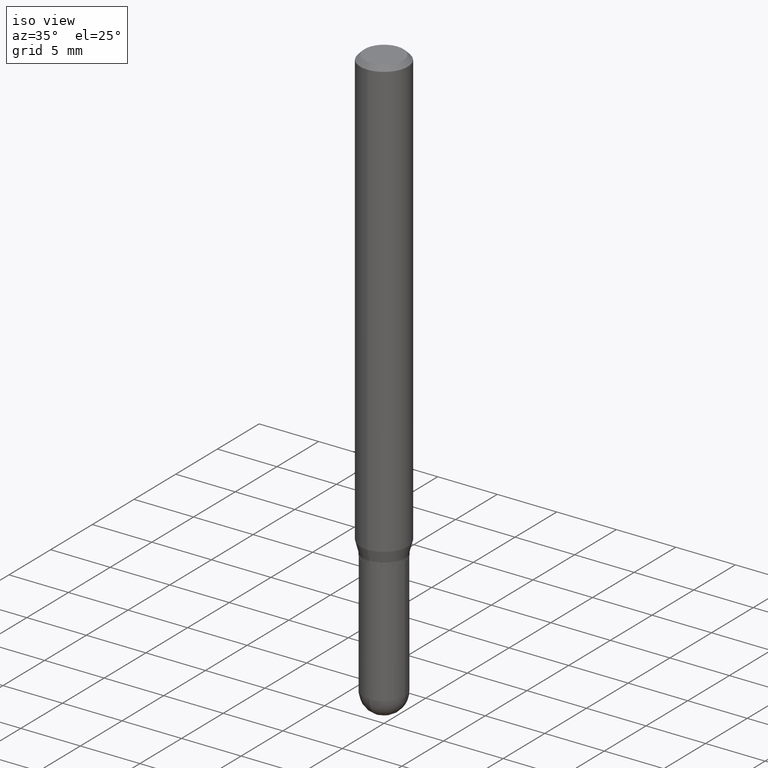
[diagram: clean part render]
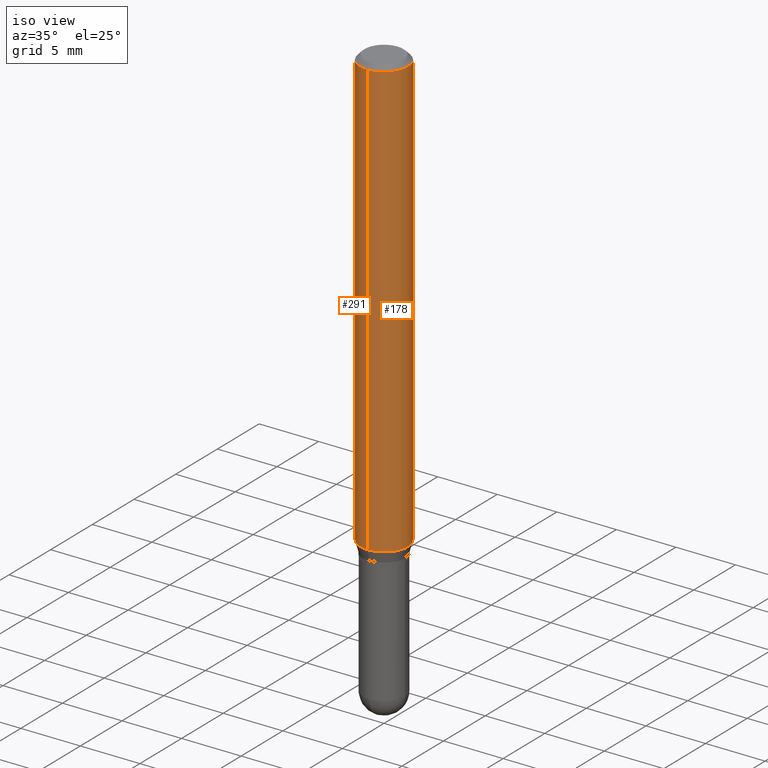
[diagram: same view with one multi-face feature highlighted, each face labeled with its STEP entity id]
A machine part, iso view. The highlighted faces form ONE feature: a constant-radius fillet chain: 2 tangent blend faces with common blend radius 2.0002 mm. The faces share edges in the B-rep.
Their STEP definitions:
[1] entity #291 (Cylinder):
#5 = ORIENTED_EDGE ( 'NONE', *, *, #56, .T. ) ;
#21 = CYLINDRICAL_SURFACE ( 'NONE', #35, 0.07874999999999997280 ) ;
#35 = AXIS2_PLACEMENT_3D ( 'NONE', #143, #461, #370 ) ;
#40 = VERTEX_POINT ( 'NONE', #343 ) ;
#55 = AXIS2_PLACEMENT_3D ( 'NONE', #185, #100, #418 ) ;
#56 = EDGE_CURVE ( 'NONE', #393, #40, #335, .T. ) ;
#73 = CARTESIAN_POINT ( 'NONE',  ( -5.499083108677932471E-16, -0.07874999999999997280, 2.749046200580822473E-16 ) ) ;
#80 = CARTESIAN_POINT ( 'NONE',  ( -5.499083108677930499E-16, -0.07875000000000004219, -0.01499999999999965423 ) ) ;
#97 = EDGE_CURVE ( 'NONE', #327, #408, #309, .T. ) ;
#100 = DIRECTION ( 'NONE',  ( -2.445908048954081787E-29, 3.490852318197870426E-15, 1.000000000000000000 ) ) ;
#107 = LINE ( 'NONE', #331, #497 ) ;
#121 = EDGE_CURVE ( 'NONE', #393, #327, #107, .T. ) ;
#135 = DIRECTION ( 'NONE',  ( -2.445908048954081787E-29, 3.490852318197870426E-15, 1.000000000000000000 ) ) ;
#143 = CARTESIAN_POINT ( 'NONE',  ( 0.000000000000000000, 0.000000000000000000, 0.000000000000000000 ) ) ;
#152 = LINE ( 'NONE', #73, #361 ) ;
#154 = ORIENTED_EDGE ( 'NONE', *, *, #451, .T. ) ;
#156 = AXIS2_PLACEMENT_3D ( 'NONE', #427, #135, #334 ) ;
#185 = CARTESIAN_POINT ( 'NONE',  ( 3.668862073431105567E-31, -5.236278477296780938E-17, -0.01499999999999993006 ) ) ;
#202 = CARTESIAN_POINT ( 'NONE',  ( 5.595524044111142018E-16, 0.07874999999999494904, -1.449339299545445936 ) ) ;
#279 = ORIENTED_EDGE ( 'NONE', *, *, #121, .F. ) ;
#291 = ADVANCED_FACE ( 'NONE', ( #372 ), #21, .T. ) ;
#309 = CIRCLE ( 'NONE', #55, 0.07875000000000000056 ) ;
#327 = VERTEX_POINT ( 'NONE', #464 ) ;
#331 = CARTESIAN_POINT ( 'NONE',  ( 5.595524044110786045E-16, 0.07874999999999997280, -2.749046200580822473E-16 ) ) ;
#334 = DIRECTION ( 'NONE',  ( -6.982962677686265922E-15, -1.000000000000000000, 3.469013325287954477E-15 ) ) ;
#335 = CIRCLE ( 'NONE', #156, 0.07874999999999997280 ) ;
#343 = CARTESIAN_POINT ( 'NONE',  ( -5.499083108677578469E-16, -0.07875000000000501044, -1.449339299545445270 ) ) ;
#361 = VECTOR ( 'NONE', #402, 39.37007874015748143 ) ;
#370 = DIRECTION ( 'NONE',  ( -6.982962677686265922E-15, -1.000000000000000000, 3.490852318197870821E-15 ) ) ;
#372 = FACE_OUTER_BOUND ( 'NONE', #441, .T. ) ;
#393 = VERTEX_POINT ( 'NONE', #202 ) ;
#402 = DIRECTION ( 'NONE',  ( -2.445908048954081507E-29, 3.490852318197870426E-15, 1.000000000000000000 ) ) ;
#408 = VERTEX_POINT ( 'NONE', #80 ) ;
#418 = DIRECTION ( 'NONE',  ( -6.982962677686264344E-15, -1.000000000000000000, 3.496114991891765576E-15 ) ) ;
#427 = CARTESIAN_POINT ( 'NONE',  ( 3.544950658423675948E-29, -5.059429453673496817E-15, -1.449339299545445714 ) ) ;
#441 = EDGE_LOOP ( 'NONE', ( #279, #5, #154, #452 ) ) ;
#451 = EDGE_CURVE ( 'NONE', #40, #408, #152, .T. ) ;
#452 = ORIENTED_EDGE ( 'NONE', *, *, #97, .F. ) ;
#461 = DIRECTION ( 'NONE',  ( -2.445908048954081787E-29, 3.490852318197870426E-15, 1.000000000000000000 ) ) ;
#464 = CARTESIAN_POINT ( 'NONE',  ( 5.595524044111143991E-16, 0.07874999999999994504, -0.01500000000000020414 ) ) ;
#468 = DIRECTION ( 'NONE',  ( -2.445908048954081507E-29, 3.490852318197870426E-15, 1.000000000000000000 ) ) ;
#497 = VECTOR ( 'NONE', #468, 39.37007874015748143 ) ;
[2] entity #178 (Cylinder):
#14 = CYLINDRICAL_SURFACE ( 'NONE', #265, 0.07874999999999997280 ) ;
#40 = VERTEX_POINT ( 'NONE', #343 ) ;
#58 = CIRCLE ( 'NONE', #158, 0.07875000000000000056 ) ;
#67 = CARTESIAN_POINT ( 'NONE',  ( 3.668862073431105567E-31, -5.236278477296780938E-17, -0.01499999999999993006 ) ) ;
#73 = CARTESIAN_POINT ( 'NONE',  ( -5.499083108677932471E-16, -0.07874999999999997280, 2.749046200580822473E-16 ) ) ;
#76 = DIRECTION ( 'NONE',  ( -2.445908048954081787E-29, 3.490852318197870426E-15, 1.000000000000000000 ) ) ;
#80 = CARTESIAN_POINT ( 'NONE',  ( -5.499083108677930499E-16, -0.07875000000000004219, -0.01499999999999965423 ) ) ;
#107 = LINE ( 'NONE', #331, #497 ) ;
#121 = EDGE_CURVE ( 'NONE', #393, #327, #107, .T. ) ;
#136 = EDGE_LOOP ( 'NONE', ( #406, #351, #364, #167 ) ) ;
#148 = DIRECTION ( 'NONE',  ( -2.445908048954081787E-29, 3.490852318197870426E-15, 1.000000000000000000 ) ) ;
#152 = LINE ( 'NONE', #73, #361 ) ;
#158 = AXIS2_PLACEMENT_3D ( 'NONE', #67, #148, #224 ) ;
#167 = ORIENTED_EDGE ( 'NONE', *, *, #451, .F. ) ;
#178 = ADVANCED_FACE ( 'NONE', ( #257 ), #14, .T. ) ;
#189 = CIRCLE ( 'NONE', #494, 0.07874999999999997280 ) ;
#191 = CARTESIAN_POINT ( 'NONE',  ( 0.000000000000000000, 0.000000000000000000, 0.000000000000000000 ) ) ;
#196 = DIRECTION ( 'NONE',  ( -6.982962677686265922E-15, -1.000000000000000000, 3.469013325287954477E-15 ) ) ;
#202 = CARTESIAN_POINT ( 'NONE',  ( 5.595524044111142018E-16, 0.07874999999999494904, -1.449339299545445936 ) ) ;
#223 = EDGE_CURVE ( 'NONE', #40, #393, #189, .T. ) ;
#224 = DIRECTION ( 'NONE',  ( -6.982962677686264344E-15, -1.000000000000000000, 3.496114991891765576E-15 ) ) ;
#257 = FACE_OUTER_BOUND ( 'NONE', #136, .T. ) ;
#265 = AXIS2_PLACEMENT_3D ( 'NONE', #191, #76, #388 ) ;
#298 = EDGE_CURVE ( 'NONE', #408, #327, #58, .T. ) ;
#313 = CARTESIAN_POINT ( 'NONE',  ( 3.544950658423675948E-29, -5.059429453673496817E-15, -1.449339299545445714 ) ) ;
#327 = VERTEX_POINT ( 'NONE', #464 ) ;
#331 = CARTESIAN_POINT ( 'NONE',  ( 5.595524044110786045E-16, 0.07874999999999997280, -2.749046200580822473E-16 ) ) ;
#343 = CARTESIAN_POINT ( 'NONE',  ( -5.499083108677578469E-16, -0.07875000000000501044, -1.449339299545445270 ) ) ;
#351 = ORIENTED_EDGE ( 'NONE', *, *, #121, .T. ) ;
#361 = VECTOR ( 'NONE', #402, 39.37007874015748143 ) ;
#364 = ORIENTED_EDGE ( 'NONE', *, *, #298, .F. ) ;
#388 = DIRECTION ( 'NONE',  ( -6.982962677686265922E-15, -1.000000000000000000, 3.490852318197870821E-15 ) ) ;
#393 = VERTEX_POINT ( 'NONE', #202 ) ;
#402 = DIRECTION ( 'NONE',  ( -2.445908048954081507E-29, 3.490852318197870426E-15, 1.000000000000000000 ) ) ;
#406 = ORIENTED_EDGE ( 'NONE', *, *, #223, .T. ) ;
#408 = VERTEX_POINT ( 'NONE', #80 ) ;
#451 = EDGE_CURVE ( 'NONE', #40, #408, #152, .T. ) ;
#464 = CARTESIAN_POINT ( 'NONE',  ( 5.595524044111143991E-16, 0.07874999999999994504, -0.01500000000000020414 ) ) ;
#468 = DIRECTION ( 'NONE',  ( -2.445908048954081507E-29, 3.490852318197870426E-15, 1.000000000000000000 ) ) ;
#477 = DIRECTION ( 'NONE',  ( -2.445908048954081787E-29, 3.490852318197870426E-15, 1.000000000000000000 ) ) ;
#494 = AXIS2_PLACEMENT_3D ( 'NONE', #313, #477, #196 ) ;
#497 = VECTOR ( 'NONE', #468, 39.37007874015748143 ) ;